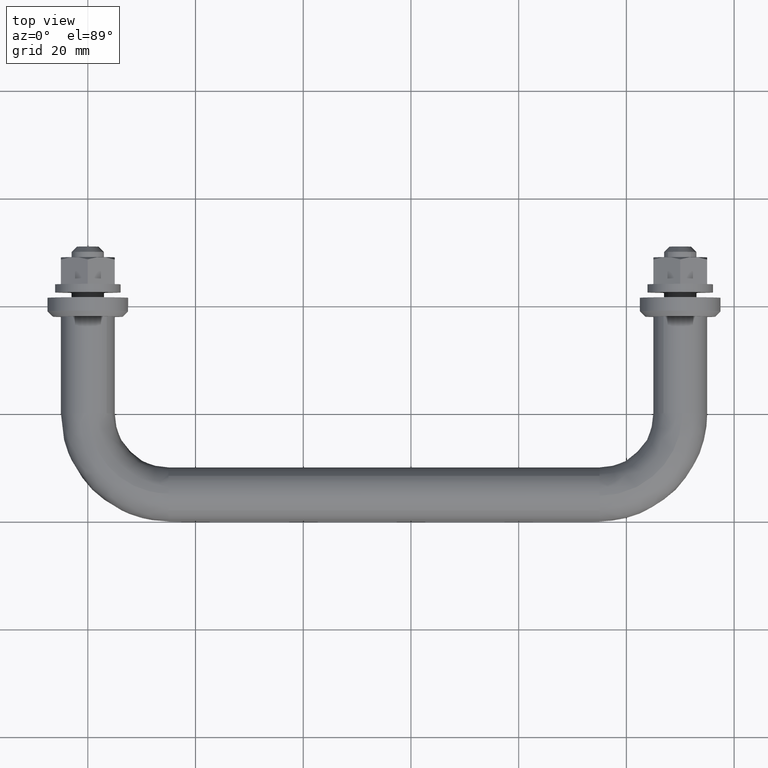
[diagram: clean part render]
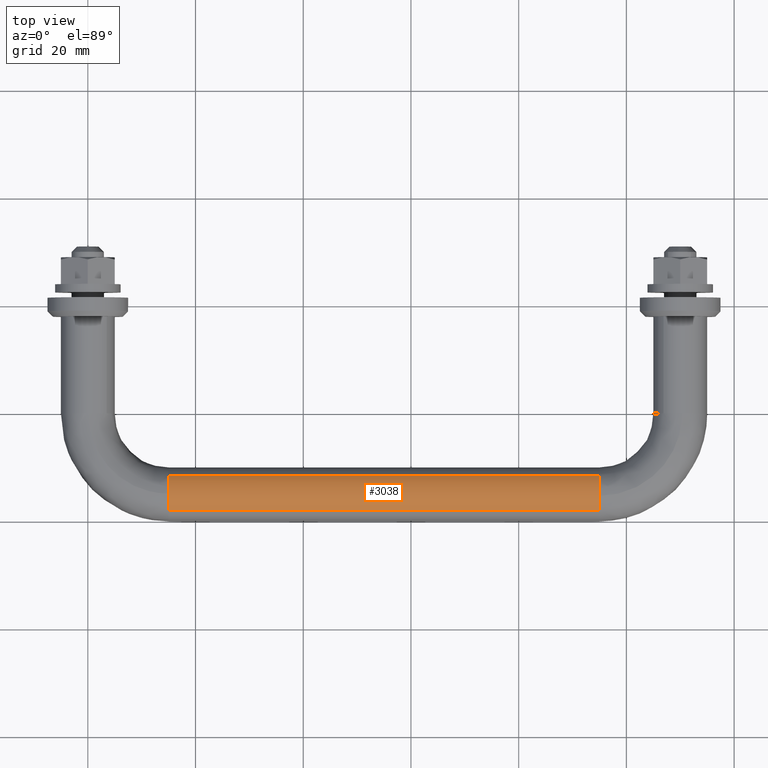
[diagram: same view with one face highlighted and labeled with its STEP entity id]
A machine part, top view. The second image highlights one B-rep face of the part: STEP entity #3038.
In plain terms, the highlighted face is a freeform B-spline surface patch.
Its self-contained STEP definition (entity closure, byte-faithful):
#2821=CARTESIAN_POINT('',(95.000000000009067,-38.040222708085423,3.969514565401058));
#2822=VERTEX_POINT('',#2821);
#2836=CARTESIAN_POINT('',(15.0,-38.040222708104316,3.969514565425701));
#2837=VERTEX_POINT('',#2836);
#2838=CARTESIAN_POINT('',(15.0,-38.040222708104316,3.969514565425701));
#2839=CARTESIAN_POINT('',(95.000000000009067,-38.040222708085423,3.969514565401058));
#2840=QUASI_UNIFORM_CURVE('',1,(#2838,#2839),.UNSPECIFIED.,.F.,.U.);
#2841=EDGE_CURVE('',#2837,#2822,#2840,.T.);
#2890=CARTESIAN_POINT('',(14.999999999850759,-31.622050296201198,3.686387906574944));
#2891=VERTEX_POINT('',#2890);
#2905=CARTESIAN_POINT('',(95.000000000000028,-31.622050338434860,3.686387945391597));
#2906=VERTEX_POINT('',#2905);
#2907=CARTESIAN_POINT('',(14.999999999850759,-31.622050296201198,3.686387906574944));
#2908=CARTESIAN_POINT('',(95.000000000000028,-31.622050338434860,3.686387945391597));
#2909=QUASI_UNIFORM_CURVE('',1,(#2907,#2908),.UNSPECIFIED.,.F.,.U.);
#2910=EDGE_CURVE('',#2891,#2906,#2909,.T.);
#2960=CARTESIAN_POINT('',(12.999999999521110,-31.622048961921699,3.686386684050619));
#2961=CARTESIAN_POINT('',(12.999999999521110,-34.712458498676909,6.518225283060159));
#2962=CARTESIAN_POINT('',(12.999999999521112,-38.040222708102142,3.969514565427370));
#2963=CARTESIAN_POINT('',(97.050000000557006,-31.622048961921688,3.686386684050619));
#2964=CARTESIAN_POINT('',(97.050000000556992,-34.712458498676895,6.518225283060159));
#2965=CARTESIAN_POINT('',(97.050000000557006,-38.040222708102128,3.969514565427370));
#2973=(BOUNDED_SURFACE()B_SPLINE_SURFACE(2,1,((#2960,#2963),(#2961,#2964),(#2962,#2965)),.UNSPECIFIED.,.F.,.F.,.U.)B_SPLINE_SURFACE_WITH_KNOTS((3,3),(2,2),(0.0,7.272191661774056),(0.0,84.050000001035912),.UNSPECIFIED.)GEOMETRIC_REPRESENTATION_ITEM()RATIONAL_B_SPLINE_SURFACE(((1.0,1.0),(0.742253967444162,0.742253967444162),(0.938140952186599,0.938140952186599)))REPRESENTATION_ITEM('')SURFACE());
#2974=CARTESIAN_POINT('',(95.000000000021487,-35.348666258143943,4.987828369183516));
#2975=VERTEX_POINT('',#2974);
#2976=CARTESIAN_POINT('',(95.000000000009067,-38.040222708085430,3.969514565401058));
#2977=CARTESIAN_POINT('',(95.000000000014566,-36.847439021034170,4.883059028146166));
#2978=CARTESIAN_POINT('',(95.000000000021487,-35.348666258143943,4.987828369183516));
#2986=(BOUNDED_CURVE()B_SPLINE_CURVE(2,(#2976,#2977,#2978),.UNSPECIFIED.,.F.,.U.)B_SPLINE_CURVE_WITH_KNOTS((3,3),(0.644916377218950,0.737833686516740),.UNSPECIFIED.)CURVE()GEOMETRIC_REPRESENTATION_ITEM()RATIONAL_B_SPLINE_CURVE((0.857271138876148,0.874615817744879,0.972879876348160))REPRESENTATION_ITEM(''));
#2987=EDGE_CURVE('',#2822,#2975,#2986,.T.);
#2988=ORIENTED_EDGE('',*,*,#2987,.T.);
#2989=CARTESIAN_POINT('',(95.000000000021487,-35.348666258143950,4.987828369183516));
#2990=CARTESIAN_POINT('',(95.0,-35.174545579641276,5.0));
#2991=CARTESIAN_POINT('',(95.0,-35.0,5.0));
#2992=CARTESIAN_POINT('',(95.0,-33.055607415417484,5.0));
#2993=CARTESIAN_POINT('',(95.000000000000028,-31.622050338434853,3.686387945391597));
#3001=(BOUNDED_CURVE()B_SPLINE_CURVE(2,(#2989,#2990,#2991,#2992,#2993),.UNSPECIFIED.,.F.,.U.)B_SPLINE_CURVE_WITH_KNOTS((3,2,3),(0.737833686516740,0.750000000000000,0.868415152714886),.UNSPECIFIED.)CURVE()GEOMETRIC_REPRESENTATION_ITEM()RATIONAL_B_SPLINE_CURVE((0.972879876348161,0.985746277131178,1.0,0.861268019060202,0.853959787795803))REPRESENTATION_ITEM(''));
#3002=EDGE_CURVE('',#2975,#2906,#3001,.T.);
#3003=ORIENTED_EDGE('',*,*,#3002,.T.);
#3004=ORIENTED_EDGE('',*,*,#2910,.F.);
#3005=CARTESIAN_POINT('',(14.999999999545761,-34.937169799797282,4.999605221009203));
#3006=VERTEX_POINT('',#3005);
#3007=CARTESIAN_POINT('',(14.999999999545759,-34.937169799797282,4.999605221009203));
#3008=CARTESIAN_POINT('',(14.999999999721322,-33.029007021538007,4.975625277478143));
#3009=CARTESIAN_POINT('',(14.999999999850761,-31.622050296201198,3.686387906574944));
#3017=(BOUNDED_CURVE()B_SPLINE_CURVE(2,(#3007,#3008,#3009),.UNSPECIFIED.,.F.,.U.)B_SPLINE_CURVE_WITH_KNOTS((3,3),(0.752215704133566,0.868415154452578),.UNSPECIFIED.)CURVE()GEOMETRIC_REPRESENTATION_ITEM()RATIONAL_B_SPLINE_CURVE((0.994854295516746,0.861131270386991,0.853959787581312))REPRESENTATION_ITEM(''));
#3018=EDGE_CURVE('',#3006,#2891,#3017,.T.);
#3019=ORIENTED_EDGE('',*,*,#3018,.F.);
#3020=CARTESIAN_POINT('',(14.999999999999995,-38.040222708104324,3.969514565425702));
#3021=CARTESIAN_POINT('',(15.000000000000005,-36.694753203158868,5.0));
#3022=CARTESIAN_POINT('',(15.0,-35.0,5.0));
#3023=CARTESIAN_POINT('',(15.000000000000004,-34.968583659254485,5.0));
#3024=CARTESIAN_POINT('',(14.999999999545761,-34.937169799797275,4.999605221009203));
#3032=(BOUNDED_CURVE()B_SPLINE_CURVE(2,(#3020,#3021,#3022,#3023,#3024),.UNSPECIFIED.,.F.,.U.)B_SPLINE_CURVE_WITH_KNOTS((3,2,3),(0.644916377221798,0.750000000000000,0.752215704133567),.UNSPECIFIED.)CURVE()GEOMETRIC_REPRESENTATION_ITEM()RATIONAL_B_SPLINE_CURVE((0.857271138877212,0.876886877919655,1.0,0.997404141137525,0.994854295516744))REPRESENTATION_ITEM(''));
#3033=EDGE_CURVE('',#2837,#3006,#3032,.T.);
#3034=ORIENTED_EDGE('',*,*,#3033,.F.);
#3035=ORIENTED_EDGE('',*,*,#2841,.T.);
#3036=EDGE_LOOP('',(#2988,#3003,#3004,#3019,#3034,#3035));
#3037=FACE_OUTER_BOUND('',#3036,.T.);
#3038=ADVANCED_FACE('',(#3037),#2973,.T.);